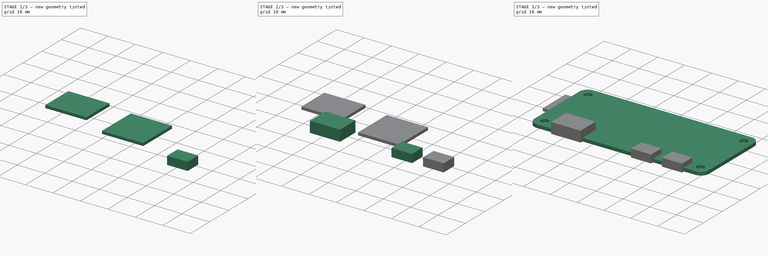
[diagram: build sequence overview — one tinted view per stage of 3, left to right]
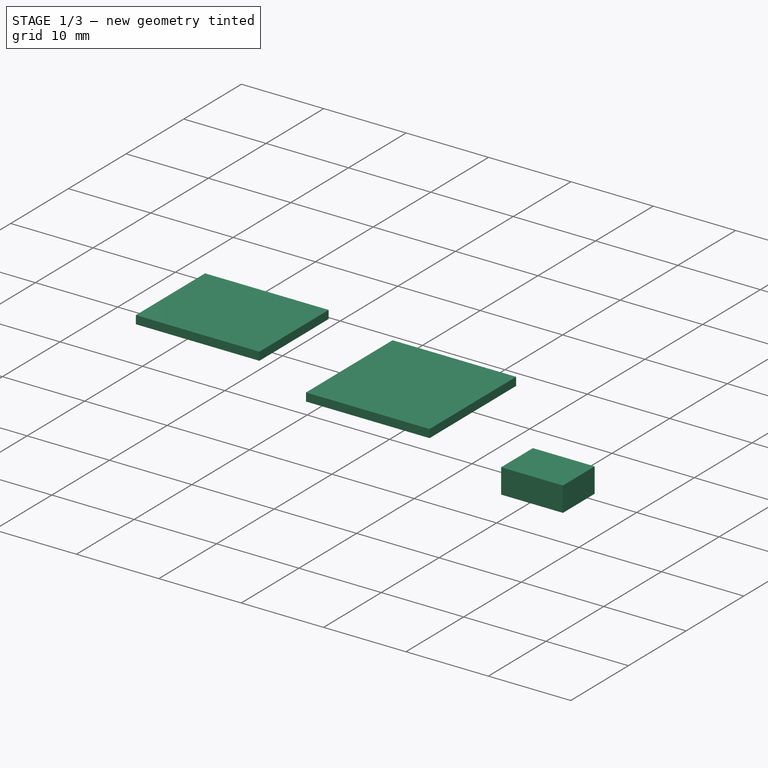
[diagram: stage 1 of 3 — iso view after this stage's code; geometry added in this stage tinted green]
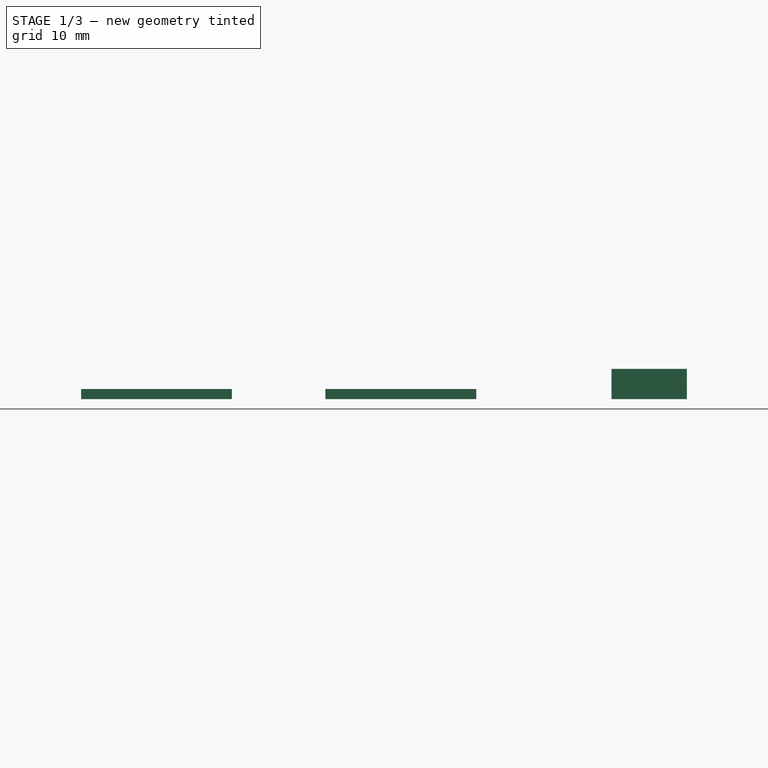
[diagram: stage 1 of 3 — front view after this stage's code; geometry added in this stage tinted green]
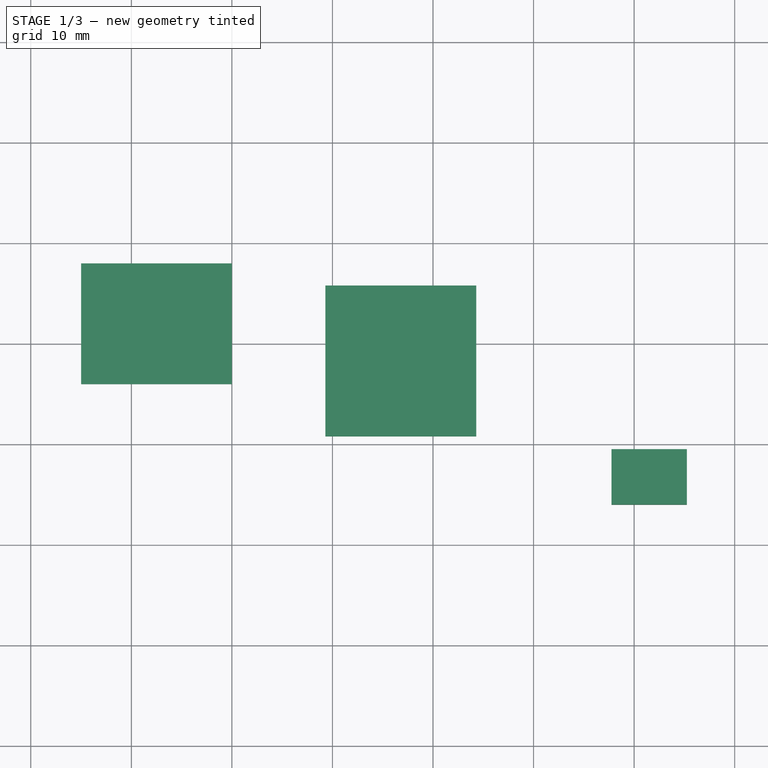
[diagram: stage 1 of 3 — top view after this stage's code; geometry added in this stage tinted green]
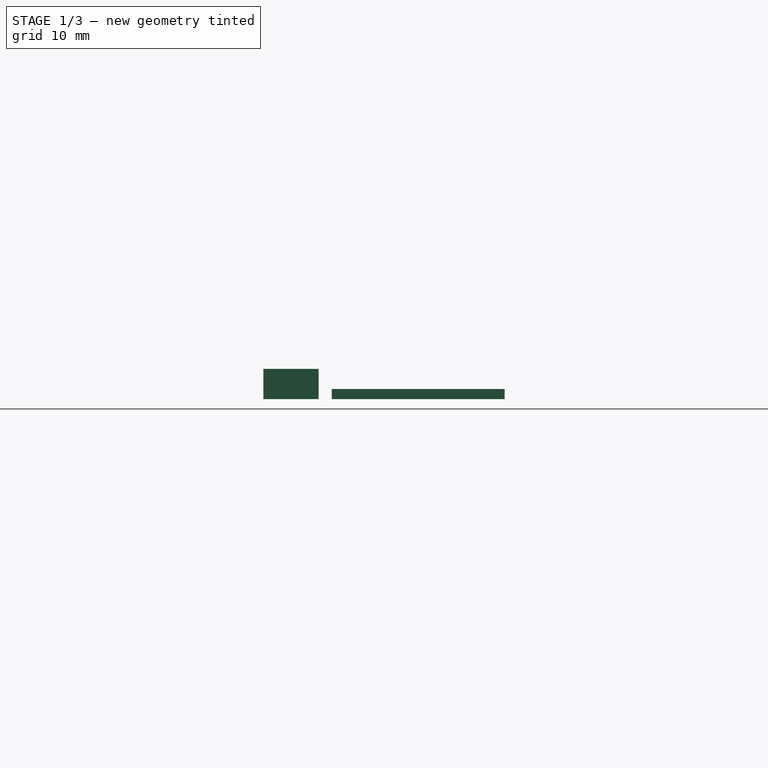
[diagram: stage 1 of 3 — right view after this stage's code; geometry added in this stage tinted green]
FCSTD DOCUMENT  (FreeCAD 1.0R39109 (Git))
Label: pi-zero-2-w
License: All rights reserved
LicenseURL: http://en.wikipedia.org/wiki/All_rights_reserved
objects: Sketcher::SketchObject×7, PartDesign::Pad×6, PartDesign::Body×6, App::Part×2, PartDesign::Pocket×1, PartDesign::LinearPattern×1
note: 43 computed .brp shape members not serialized (recipe doc carries the construction recipe); baked Part::Feature solids carry a one-line shape summary decoded from their .brp

FEATURE [PartDesign::Body] Body002  label="usb-power"
  AllowCompound = false
  Group = -> [Sketch003,Pad002]
  Origin = -> Origin003
  Tip = -> Pad002
FEATURE [Sketcher::SketchObject] Sketch004
  ArcFitTolerance = 1e-06
  AttachmentSupport = -> [XY_Plane004]
  FullyConstrained = true
  MakeInternals = false
  MapMode = 5
  sketch-geometry (6):
    g0: LineSegment StartX=17.75 StartY=-10.5 StartZ=0 EndX=17.75 EndY=-16 EndZ=0
    g1: LineSegment StartX=17.75 StartY=-16 StartZ=0 EndX=25.25 EndY=-16 EndZ=0
    g2: LineSegment StartX=25.25 StartY=-16 StartZ=0 EndX=25.25 EndY=-10.5 EndZ=0
    g3: LineSegment StartX=25.25 StartY=-10.5 StartZ=0 EndX=17.75 EndY=-10.5 EndZ=0
    g4: GeomPoint X=21.5 Y=-16 Z=0
    g5: GeomPoint X=0 Y=-15 Z=0
  constraints (15):
    c: Coincident(g0,g1)
    c: Coincident(g1,g2)
    c: Coincident(g2,g3)
    c: Coincident(g3,g0)
    c: Vertical(g0)
    c: Vertical(g2)
    c: Horizontal(g1)
    c: Horizontal(g3)
    c: Symmetric(g1,g1,g4)
    c: DistanceX(g4) = 21.5
    c: DistanceX(g1,g1) = 7.5
    c: DistanceY(g0,g0) = 5.5
    c: PointOnObject(g5,g-2)
    c: DistanceY(g5) = -15
    c: DistanceY(g0,g5) = 1
FEATURE [PartDesign::Pad] Pad003
  Direction = (0,0,1)
  Length = 3
  Length2 = 10
  Profile = -> Sketch004
  ReferenceAxis = -> Sketch004 [N_Axis]
  Suppressed = false
  Type = 0
FEATURE [PartDesign::Body] Body003  label="usb-data"
  AllowCompound = false
  Group = -> [Sketch004,Pad003]
  Origin = -> Origin004
  Tip = -> Pad003
FEATURE [Sketcher::SketchObject] Sketch005
  ArcFitTolerance = 1e-06
  AttachmentSupport = -> [XY_Plane005]
  FullyConstrained = true
  MakeInternals = false
  MapMode = 5
  sketch-geometry (6):
    g0: LineSegment StartX=-35 StartY=8 StartZ=0 EndX=-35 EndY=-4 EndZ=0
    g1: LineSegment StartX=-35 StartY=-4 StartZ=0 EndX=-20 EndY=-4 EndZ=0
    g2: LineSegment StartX=-20 StartY=-4 StartZ=0 EndX=-20 EndY=8 EndZ=0
    g3: LineSegment StartX=-20 StartY=8 StartZ=0 EndX=-35 EndY=8 EndZ=0
    g4: GeomPoint X=-20 Y=2 Z=0
    g5: GeomPoint X=-32.5 Y=0 Z=0
  constraints (15):
    c: Coincident(g0,g1)
    c: Coincident(g1,g2)
    c: Coincident(g2,g3)
    c: Coincident(g3,g0)
    c: Vertical(g0)
    c: Vertical(g2)
    c: Horizontal(g1)
    c: Horizontal(g3)
    c: Symmetric(g2,g2,g4)
    c: DistanceY(g4) = 2
    c: DistanceY(g2,g2) = 12
    c: DistanceX(g1,g1) = 15
    c: PointOnObject(g5,g-1)
    c: DistanceX(g5) = -32.5
    c: DistanceX(g0,g5) = 2.5
FEATURE [PartDesign::Pad] Pad004
  Direction = (0,0,1)
  Length = 1
  Length2 = 10
  Profile = -> Sketch005
  ReferenceAxis = -> Sketch005 [N_Axis]
  Suppressed = false
  Type = 0
FEATURE [PartDesign::Body] Body004  label="sd-card-slot"
  AllowCompound = false
  Group = -> [Sketch005,Pad004]
  Origin = -> Origin005
  Tip = -> Pad004
FEATURE [Sketcher::SketchObject] Sketch006
  ArcFitTolerance = 1e-06
  AttachmentSupport = -> [XY_Plane006]
  FullyConstrained = true
  MakeInternals = false
  MapMode = 5
  sketch-geometry (6):
    g0: LineSegment StartX=-10.7 StartY=5.8 StartZ=0 EndX=-10.7 EndY=-9.2 EndZ=0
    g1: LineSegment StartX=-10.7 StartY=-9.2 StartZ=0 EndX=4.3 EndY=-9.2 EndZ=0
    g2: LineSegment StartX=4.3 StartY=-9.2 StartZ=0 EndX=4.3 EndY=5.8 EndZ=0
    g3: LineSegment StartX=4.3 StartY=5.8 StartZ=0 EndX=-10.7 EndY=5.8 EndZ=0
    g4: GeomPoint X=4.3 Y=-1.7 Z=0
    g5: GeomPoint X=-3.2 Y=-9.2 Z=0
  constraints (14):
    c: Coincident(g0,g1)
    c: Coincident(g1,g2)
    c: Coincident(g2,g3)
    c: Coincident(g3,g0)
    c: Vertical(g0)
    c: Vertical(g2)
    c: Horizontal(g1)
    c: Horizontal(g3)
    c: Equal(g3,g2)
    c: DistanceX(g3,g3) = 15
    c: Symmetric(g2,g2,g4)
    c: Symmetric(g1,g1,g5)
    c: DistanceX(g5) = -3.2
    c: DistanceY(g4) = -1.7
FEATURE [PartDesign::Pad] Pad005
  Direction = (0,0,1)
  Length = 1
  Length2 = 10
  Profile = -> Sketch006
  ReferenceAxis = -> Sketch006 [N_Axis]
  Suppressed = false
  Type = 0
FEATURE [PartDesign::Body] Body005  label="cpu"
  AllowCompound = false
  Group = -> [Sketch006,Pad005]
  Origin = -> Origin006
  Tip = -> Pad005
FEATURE [App::Part] Part001  label="components"
  Group = -> [Body001,Body002,Body003,Body004,Body005]
  Origin = -> Origin007
  Placement = pos=(0,0,1.2) rot=(0,0,1;0rad)
FEATURE [App::Part] Part  label="main"
  Group = -> [Body,Part001]
  Origin = -> Origin001
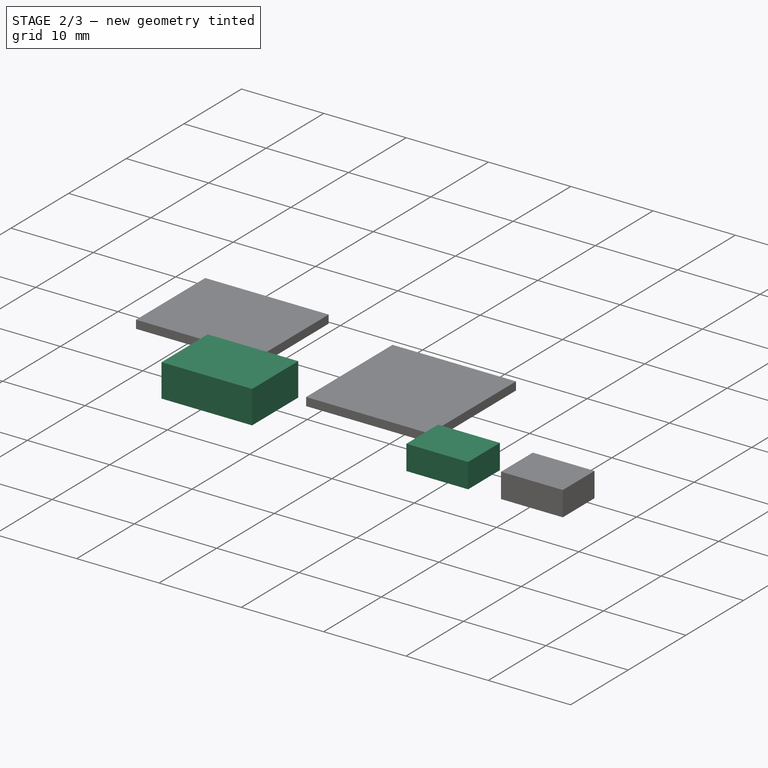
[diagram: stage 2 of 3 — iso view after this stage's code; geometry added in this stage tinted green]
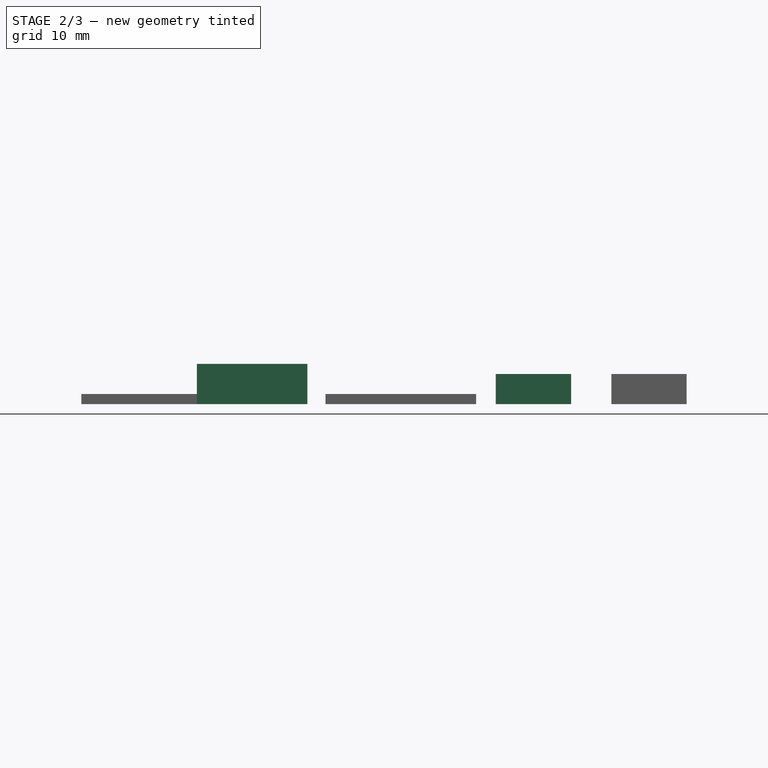
[diagram: stage 2 of 3 — front view after this stage's code; geometry added in this stage tinted green]
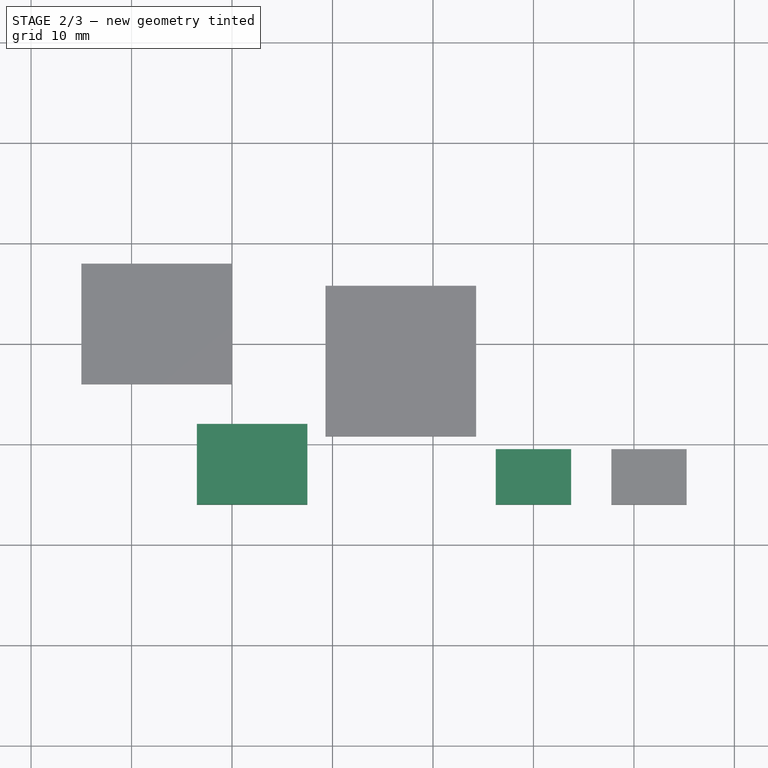
[diagram: stage 2 of 3 — top view after this stage's code; geometry added in this stage tinted green]
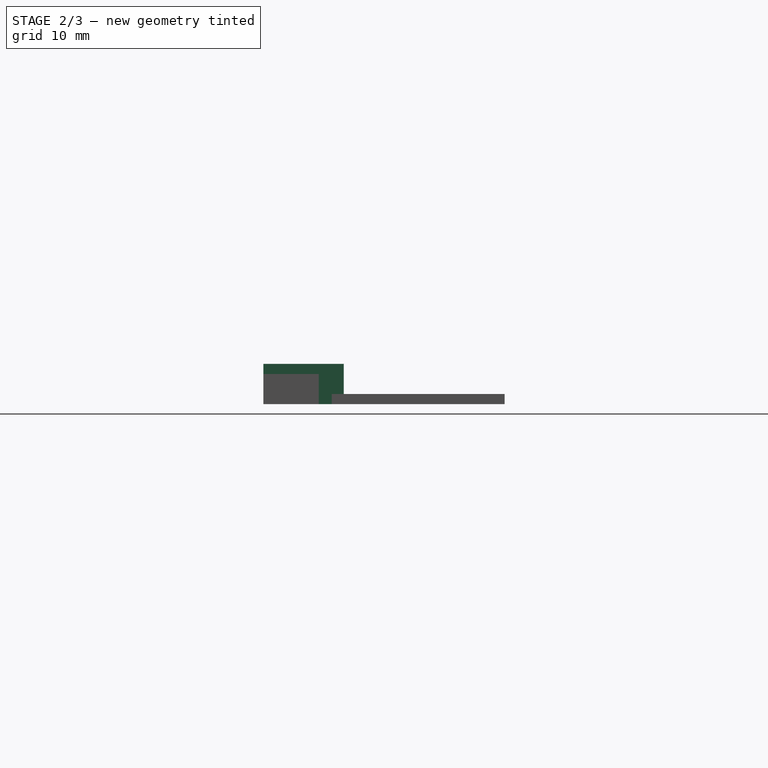
[diagram: stage 2 of 3 — right view after this stage's code; geometry added in this stage tinted green]
FEATURE [PartDesign::Body] Body  label="PCB"
  AllowCompound = false
  Group = -> [Sketch,Pad,Sketch001,Pocket,LinearPattern]
  Origin = -> Origin
  Tip = -> LinearPattern
FEATURE [Sketcher::SketchObject] Sketch002
  ArcFitTolerance = 1e-06
  AttachmentSupport = -> [XY_Plane002]
  FullyConstrained = true
  MakeInternals = false
  MapMode = 5
  sketch-geometry (6):
    g0: LineSegment StartX=-23.5 StartY=-8 StartZ=0 EndX=-23.5 EndY=-16 EndZ=0
    g1: LineSegment StartX=-23.5 StartY=-16 StartZ=0 EndX=-12.5 EndY=-16 EndZ=0
    g2: LineSegment StartX=-12.5 StartY=-16 StartZ=0 EndX=-12.5 EndY=-8 EndZ=0
    g3: LineSegment StartX=-12.5 StartY=-8 StartZ=0 EndX=-23.5 EndY=-8 EndZ=0
    g4: GeomPoint X=0 Y=-15 Z=0
    g5: GeomPoint X=-18 Y=-16 Z=0
  constraints (15):
    c: Coincident(g0,g1)
    c: Coincident(g1,g2)
    c: Coincident(g2,g3)
    c: Coincident(g3,g0)
    c: Vertical(g0)
    c: Vertical(g2)
    c: Horizontal(g1)
    c: Horizontal(g3)
    c: DistanceY(g0,g0) = 8
    c: DistanceX(g3,g3) = 11
    c: PointOnObject(g4,g-2)
    c: DistanceY(g4) = -15
    c: DistanceY(g1,g4) = 1
    c: Symmetric(g1,g1,g5)
    c: DistanceX(g5) = -18
FEATURE [PartDesign::Pad] Pad001
  Direction = (0,0,1)
  Length = 4
  Length2 = 10
  Profile = -> Sketch002
  ReferenceAxis = -> Sketch002 [N_Axis]
  Suppressed = false
  Type = 0
FEATURE [PartDesign::Body] Body001  label="mini-hdmi"
  AllowCompound = false
  Group = -> [Sketch002,Pad001]
  Origin = -> Origin002
  Tip = -> Pad001
FEATURE [Sketcher::SketchObject] Sketch003
  ArcFitTolerance = 1e-06
  AttachmentSupport = -> [XY_Plane003]
  FullyConstrained = true
  MakeInternals = false
  MapMode = 5
  sketch-geometry (6):
    g0: LineSegment StartX=6.25 StartY=-10.5 StartZ=0 EndX=6.25 EndY=-16 EndZ=0
    g1: LineSegment StartX=6.25 StartY=-16 StartZ=0 EndX=13.75 EndY=-16 EndZ=0
    g2: LineSegment StartX=13.75 StartY=-16 StartZ=0 EndX=13.75 EndY=-10.5 EndZ=0
    g3: LineSegment StartX=13.75 StartY=-10.5 StartZ=0 EndX=6.25 EndY=-10.5 EndZ=0
    g4: GeomPoint X=0 Y=-15 Z=0
    g5: GeomPoint X=10 Y=-16 Z=0
  constraints (15):
    c: Coincident(g0,g1)
    c: Coincident(g1,g2)
    c: Coincident(g2,g3)
    c: Coincident(g3,g0)
    c: Vertical(g0)
    c: Vertical(g2)
    c: Horizontal(g1)
    c: Horizontal(g3)
    c: PointOnObject(g4,g-2)
    c: DistanceY(g4) = -15
    c: DistanceY(g0,g4) = 1
    c: Symmetric(g1,g1,g5)
    c: DistanceX(g5) = 10
    c: DistanceX(g1,g1) = 7.5
    c: DistanceY(g2,g2) = 5.5
FEATURE [PartDesign::Pad] Pad002
  Direction = (0,0,1)
  Length = 3
  Length2 = 10
  Profile = -> Sketch003
  ReferenceAxis = -> Sketch003 [N_Axis]
  Suppressed = false
  Type = 0
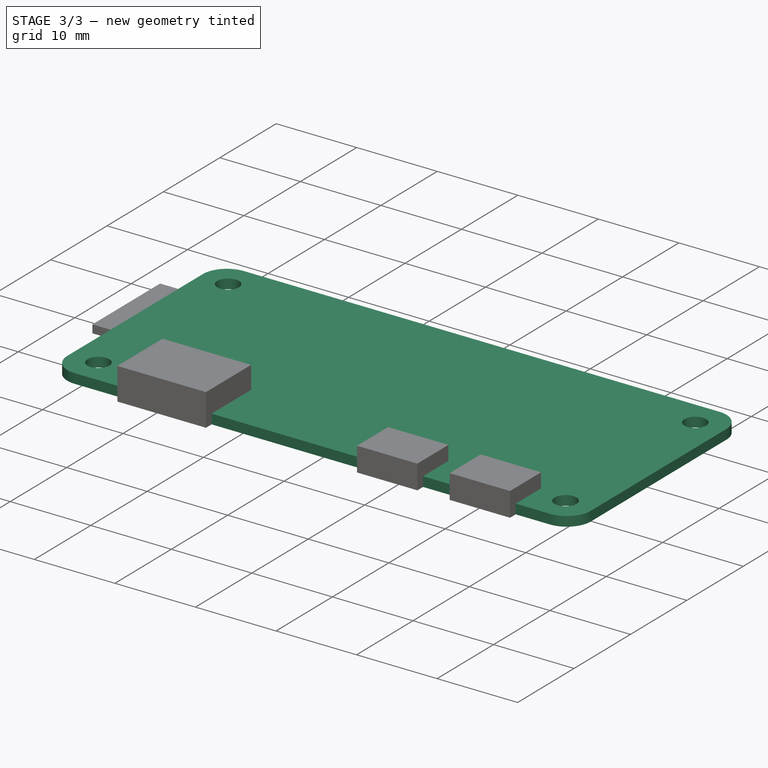
[diagram: stage 3 of 3 — iso view after this stage's code; geometry added in this stage tinted green]
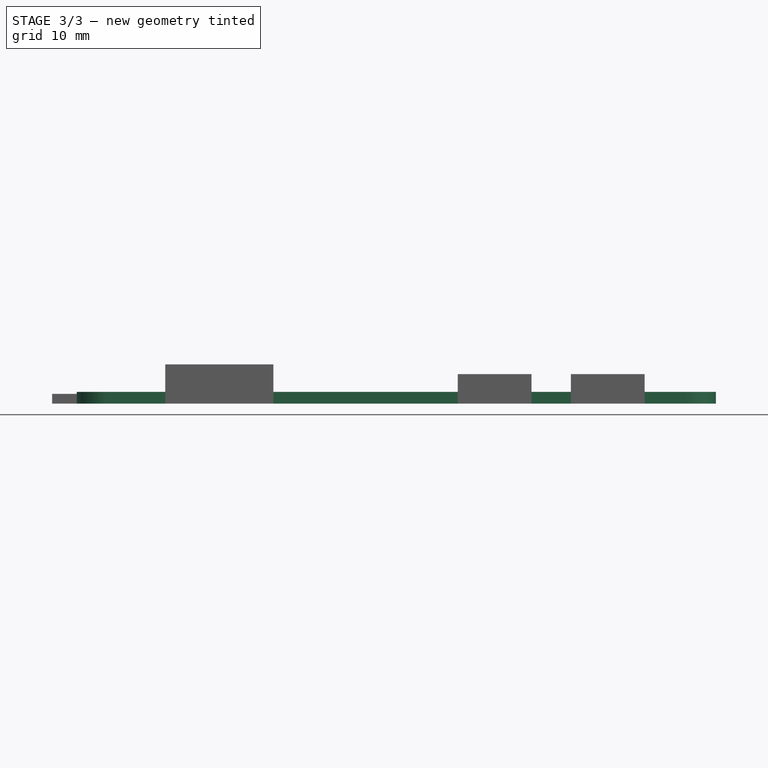
[diagram: stage 3 of 3 — front view after this stage's code; geometry added in this stage tinted green]
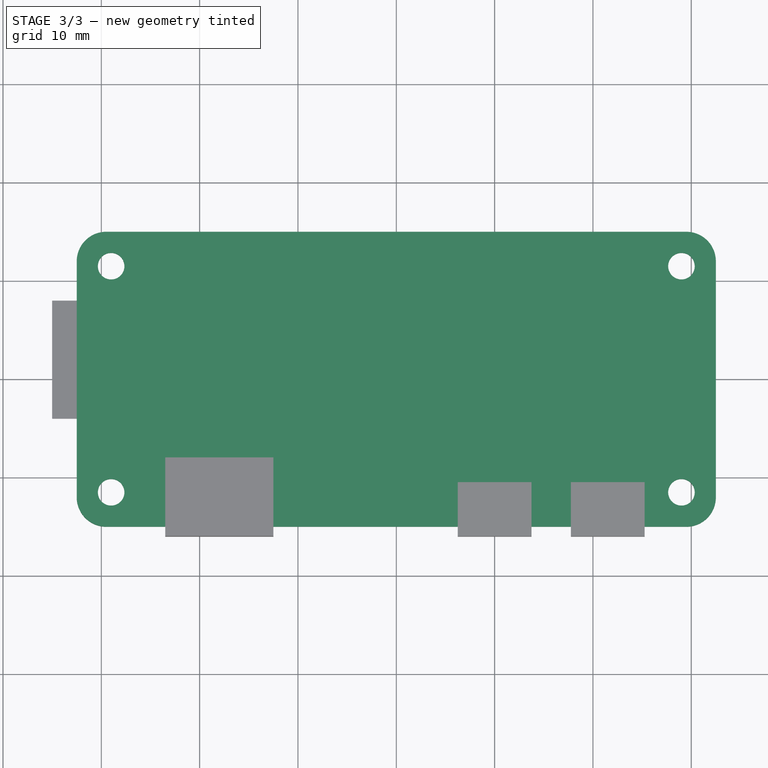
[diagram: stage 3 of 3 — top view after this stage's code; geometry added in this stage tinted green]
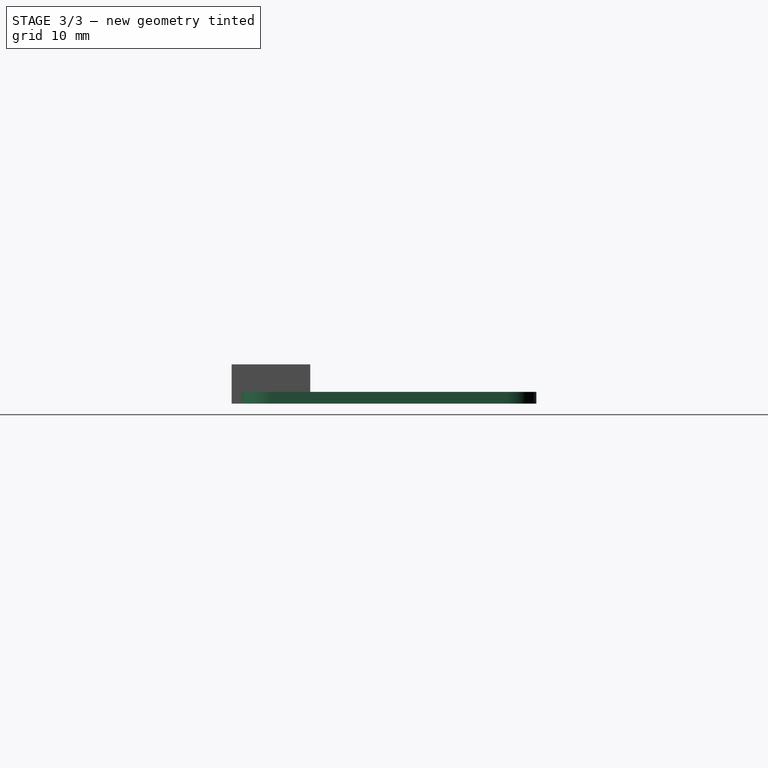
[diagram: stage 3 of 3 — right view after this stage's code; geometry added in this stage tinted green]
FEATURE [Sketcher::SketchObject] Sketch
  ArcFitTolerance = 1e-06
  AttachmentSupport = -> [XY_Plane]
  FullyConstrained = true
  MakeInternals = false
  MapMode = 5
  sketch-geometry (16):
    g0: LineSegment StartX=-32.5 StartY=12 StartZ=0 EndX=-32.5 EndY=-12 EndZ=0
    g1: LineSegment StartX=-29.5 StartY=-15 StartZ=0 EndX=29.5 EndY=-15 EndZ=0
    g2: LineSegment StartX=32.5 StartY=-12 StartZ=0 EndX=32.5 EndY=12 EndZ=0
    g3: LineSegment StartX=29.5 StartY=15 StartZ=0 EndX=-29.5 EndY=15 EndZ=0
    g4: Circle CenterX=29 CenterY=11.5 CenterZ=0 NormalX=0 NormalY=0 NormalZ=1 AngleXU=0 Radius=1.35
    g5: Circle CenterX=-29 CenterY=11.5 CenterZ=0 NormalX=0 NormalY=0 NormalZ=1 AngleXU=0 Radius=1.35
    g6: Circle CenterX=-29 CenterY=-11.5 CenterZ=0 NormalX=0 NormalY=0 NormalZ=1 AngleXU=0 Radius=1.35
    g7: Circle CenterX=29 CenterY=-11.5 CenterZ=0 NormalX=0 NormalY=0 NormalZ=1 AngleXU=0 Radius=1.35
    g8: ArcOfCircle CenterX=29.5 CenterY=12 CenterZ=0 NormalX=0 NormalY=0 NormalZ=1 AngleXU=0 Radius=3 StartAngle=1e-16 EndAngle=1.5708
    g9: GeomPoint [constr] X=32.5 Y=15 Z=0
    g10: ArcOfCircle CenterX=29.5 CenterY=-12 CenterZ=0 NormalX=0 NormalY=0 NormalZ=1 AngleXU=0 Radius=3 StartAngle=4.71239 EndAngle=6.28319
    g11: GeomPoint [constr] X=32.5 Y=-15 Z=0
    g12: ArcOfCircle CenterX=-29.5 CenterY=-12 CenterZ=0 NormalX=0 NormalY=0 NormalZ=1 AngleXU=0 Radius=3 StartAngle=3.14159 EndAngle=4.71239
    g13: GeomPoint [constr] X=-32.5 Y=-15 Z=0
    g14: ArcOfCircle CenterX=-29.5 CenterY=12 CenterZ=0 NormalX=0 NormalY=0 NormalZ=1 AngleXU=0 Radius=3 StartAngle=1.5708 EndAngle=3.14159
    g15: GeomPoint [constr] X=-32.5 Y=15 Z=0
  constraints (38):
    c: Vertical(g0)
    c: Vertical(g2)
    c: Horizontal(g1)
    c: Horizontal(g3)
    c: Symmetric(g9,g13,g-1)
    c: Equal(g7,g4)
    c: Equal(g4,g5)
    c: Equal(g5,g6)
    c: Diameter(g6) = 2.7
    c: Symmetric(g4,g6,g-1)
    c: Vertical(g4,g7)
    c: Horizontal(g4,g5)
    c: Vertical(g5,g6)
    c: Horizontal(g6,g7)
    c: DistanceX(g5,g4) = 58
    c: DistanceY(g7,g4) = 23
    c: PointOnObject(g9,g2)
    c: PointOnObject(g9,g3)
    c: Tangent(g2,g8) = -1.5708
    c: Tangent(g3,g8) = -1.5708
    c: PointOnObject(g11,g1)
    c: PointOnObject(g11,g2)
    c: Tangent(g1,g10) = -1.5708
    c: Tangent(g2,g10) = -1.5708
    c: PointOnObject(g13,g0)
    c: PointOnObject(g13,g1)
    c: Tangent(g0,g12) = -1.5708
    c: Tangent(g1,g12) = -1.5708
    c: PointOnObject(g15,g0)
    c: PointOnObject(g15,g3)
    c: Tangent(g0,g14) = -1.5708
    c: Tangent(g3,g14) = -1.5708
    c: Equal(g14,g8)
    c: Equal(g8,g10)
    c: Equal(g10,g12)
    c: Radius(g12) = 3
    c: DistanceX(g13,g6) = 3.5
    c: DistanceY(g13,g6) = 3.5
FEATURE [PartDesign::Pad] Pad
  Direction = (0,0,1)
  Length = 1.2
  Length2 = 10
  Profile = -> Sketch
  ReferenceAxis = -> Sketch [N_Axis]
  Suppressed = false
  Type = 0
FEATURE [Sketcher::SketchObject] Sketch001
  ArcFitTolerance = 1e-06
  AttachmentSupport = -> [XY_Plane]
  FullyConstrained = true
  MakeInternals = false
  MapMode = 5
  sketch-geometry (4):
    g0: Circle CenterX=-22.5 CenterY=12.75 CenterZ=0 NormalX=0 NormalY=0 NormalZ=1 AngleXU=0 Radius=0.4
    g1: GeomPoint X=-29 Y=11.5 Z=0
    g2: GeomPoint X=-22.5 Y=11.5 Z=0
    g3: Circle CenterX=-22.5 CenterY=10.25 CenterZ=0 NormalX=0 NormalY=0 NormalZ=1 AngleXU=0 Radius=0.4
  constraints (9):
    c: DistanceX(g1) = -29
    c: DistanceY(g1) = 11.5
    c: Symmetric(g3,g0,g2)
    c: Horizontal(g2,g1)
    c: Equal(g3,g0)
    c: DistanceY(g3,g0) = 2.5
    c: Diameter(g0) = 0.8
    c: Vertical(g3,g0)
    c: DistanceX(g2) = -22.5
FEATURE [PartDesign::Pocket] Pocket
  BaseFeature = -> Pad
  Direction = (0,0,-1)
  Length = 5
  Length2 = 5
  Profile = -> Sketch001
  ReferenceAxis = -> Sketch001 [N_Axis]
  Suppressed = false
  Type = 1
FEATURE [PartDesign::LinearPattern] LinearPattern
  BaseFeature = -> Pocket
  Direction = -> Sketch001 [H_Axis]
  Length = 45
  Mode = 0
  Occurrences = 20
  Offset = 2.36842
  Originals = -> [Pocket]
  Suppressed = false
  TransformMode = 0
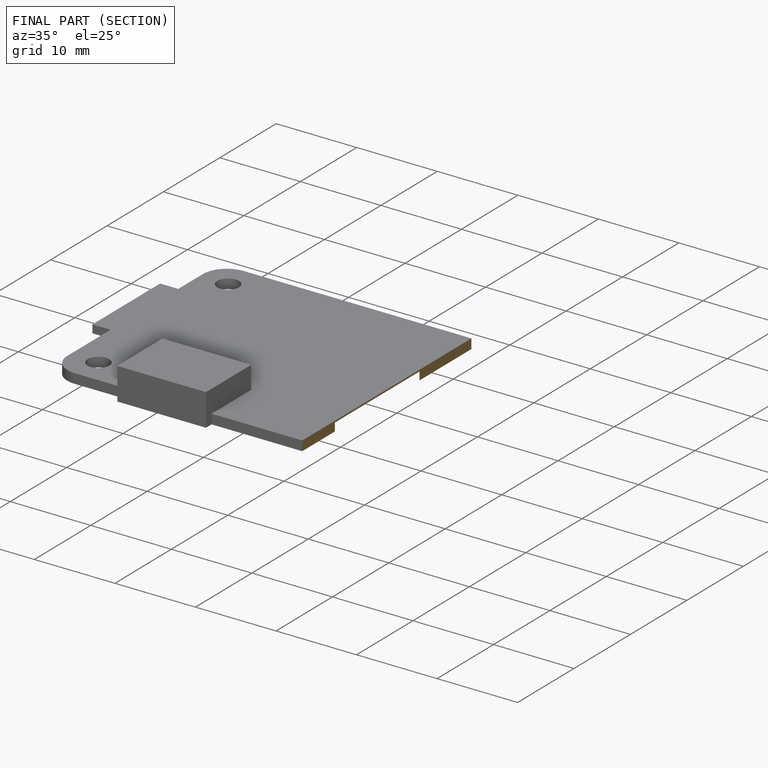
[diagram: finished part — half-section view (interior)]
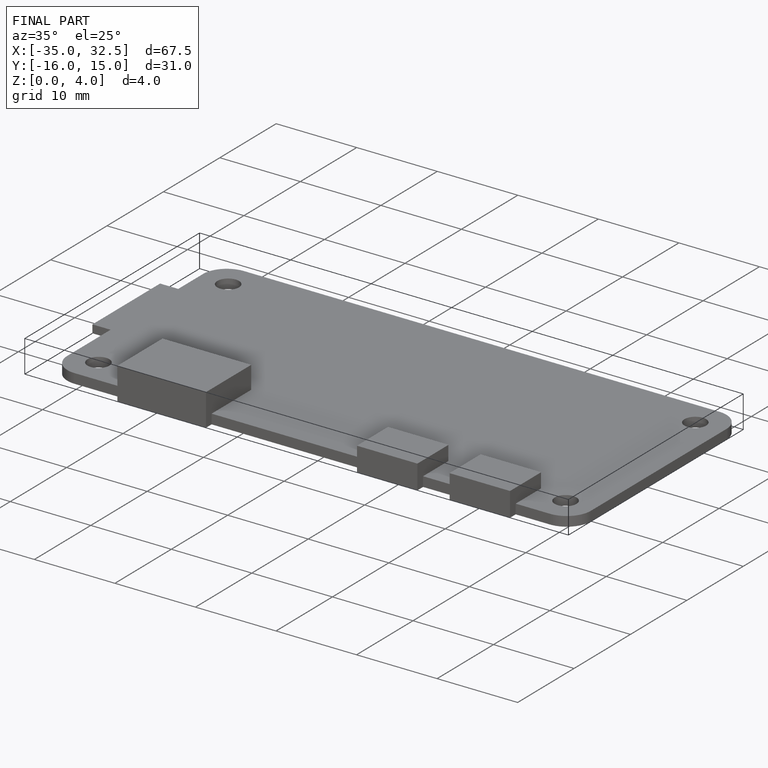
[diagram: finished part — iso view with bounding-box wireframe]
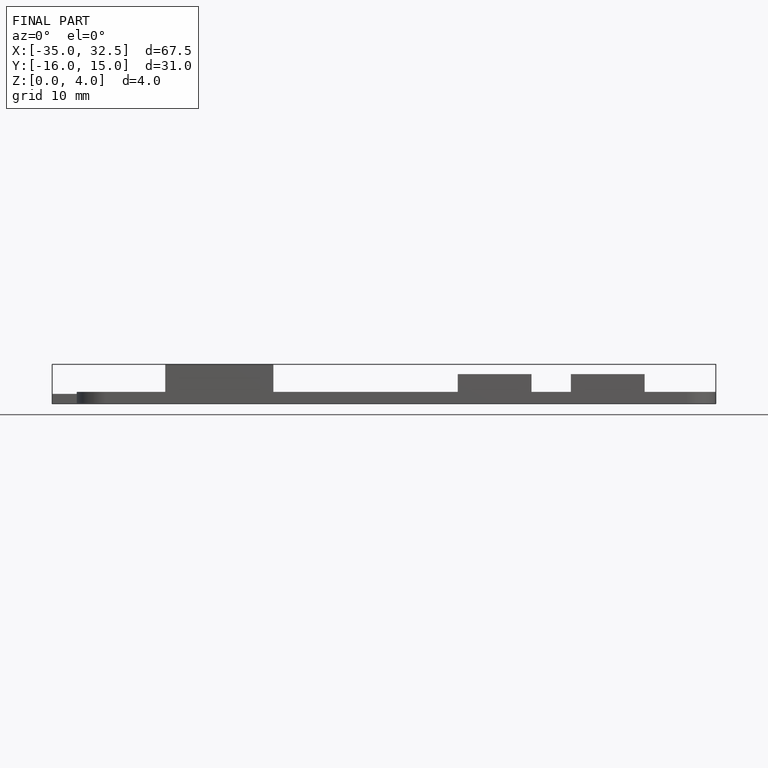
[diagram: finished part — front view with bounding-box wireframe]
